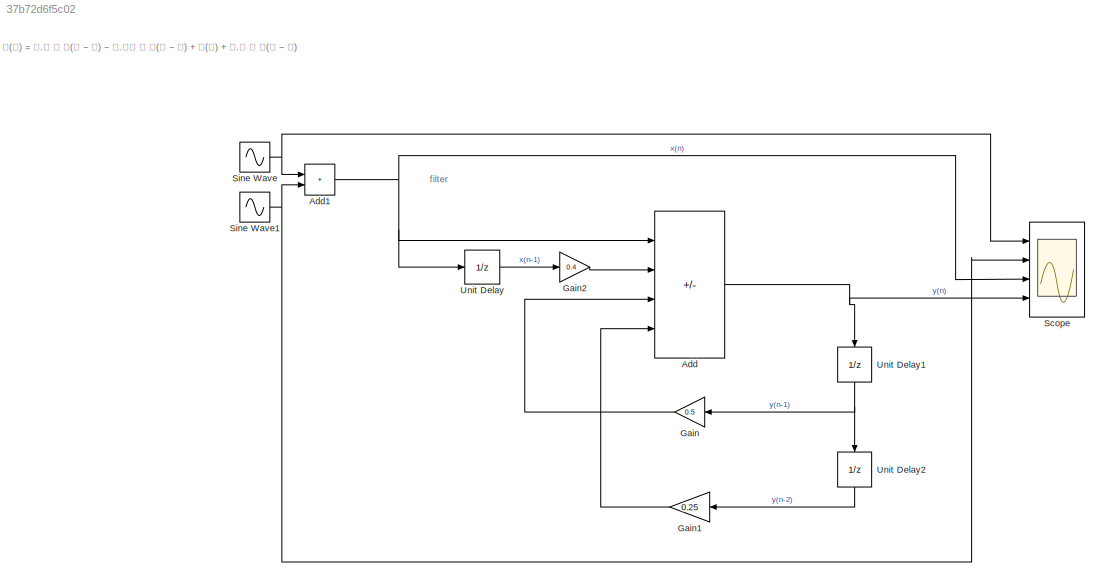
MODEL slx_37b72d6f5c02
KIND model
CONFIG AbsTol = auto
CONFIG EnableMultiTasking = off
CONFIG FixedStep = auto
CONFIG MaxStep = auto
CONFIG MinStep = auto
CONFIG RelTol = 1e-3
CONFIG SampleTimeConstraint = Unconstrained
CONFIG SolverName = VariableStepAuto
CONFIG StartTime = 0.0
CONFIG StopTime = 10.0
BLOCK [Sum] Add
  IconShape = rectangular
  Inputs = +++-
  Ports = [4, 1]
BLOCK [Sum] Add1
  IconShape = rectangular
  Ports = [2, 1]
BLOCK [Gain] Gain
  Gain = 0.5
BLOCK [Gain] Gain1
  Gain = 0.25
BLOCK [Gain] Gain2
  Gain = 0.4
BLOCK [Scope] Scope
  Floating = off
  NumInputPorts = 4
  Ports = [4]
  ScopeSpecificationString = Simulink.scopes.TimeScopeBlockCfg('CurrentConfiguration', extmgr.ConfigurationSet(extmgr.Configuration('Core','General UI',true),extmgr.Configuration('Core','Source UI',true),extmgr.Configuration('Sources','WiredSimulink',true),extmgr.Configuration('Visuals','Time Domain',true,'SerializedDisplays',{struct('MinYLimReal','-1.24998','MaxYLimReal','1.24999','YLabelReal','','MinYLimMag','0.00000','MaxY...<+3454ch>
BLOCK [Sin] Sine Wave
  Ports = [0, 1]
  SampleTime = 0
BLOCK [Sin] Sine Wave1
  Amplitude = 0.5
  Frequency = 50
  Ports = [0, 1]
  SampleTime = 0
BLOCK [UnitDelay] Unit Delay
  HasFrameUpgradeWarning = on
  SampleTime = -1
BLOCK [UnitDelay] Unit Delay1
  HasFrameUpgradeWarning = on
  NameLocation = left
  SampleTime = -1
BLOCK [UnitDelay] Unit Delay2
  HasFrameUpgradeWarning = on
  NameLocation = left
  SampleTime = -1
ANNOTATION (root): 𝐲(𝐧) = 𝟎.𝟓 ∗ 𝐲(𝐧 − 𝟏) − 𝟎.𝟐𝟓 ∗ 𝐲(𝐧 − 𝟐) + 𝐱(𝐧) + 𝟎.𝟒 ∗ 𝐱(𝐧 − 𝟏)
ANNOTATION (root): filter
NET Add1:1 -> Add:1, Scope:3, Unit Delay:1
NET Add:1 -> Scope:4, Unit Delay1:1
LINE Gain1:1 -> Add:4
LINE Gain2:1 -> Add:2
LINE Gain:1 -> Add:3
NET Sine Wave1:1 -> Add1:2, Scope:2
NET Sine Wave:1 -> Add1:1, Scope:1
NET Unit Delay1:1 -> Gain:1, Unit Delay2:1
LINE Unit Delay2:1 -> Gain1:1
LINE Unit Delay:1 -> Gain2:1
note: NET lines group one-source signal fan-out (src -> all destinations, sorted); 1:1 wires keep LINE
